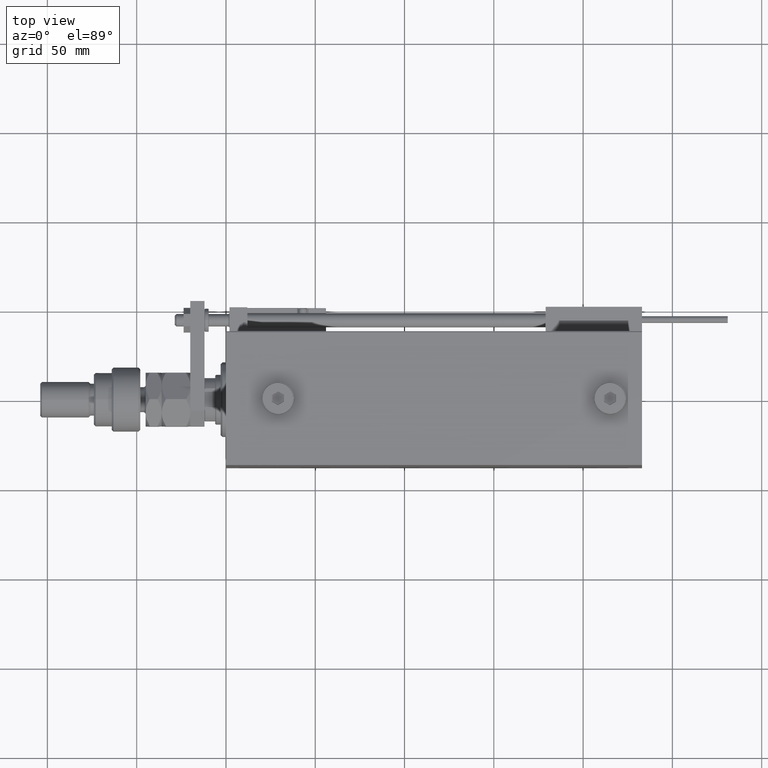
[diagram: clean part render]
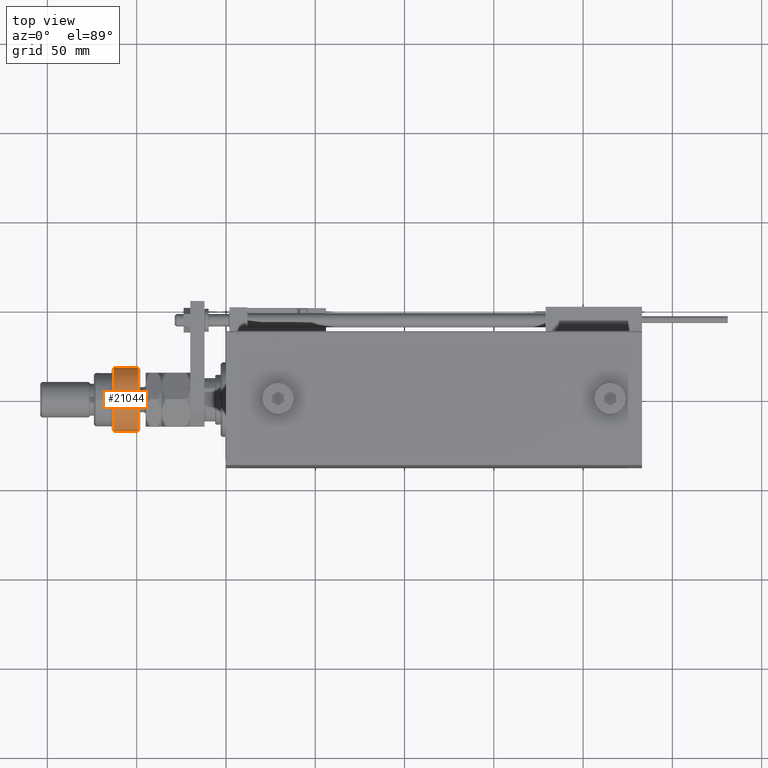
[diagram: same view with one face highlighted and labeled with its STEP entity id]
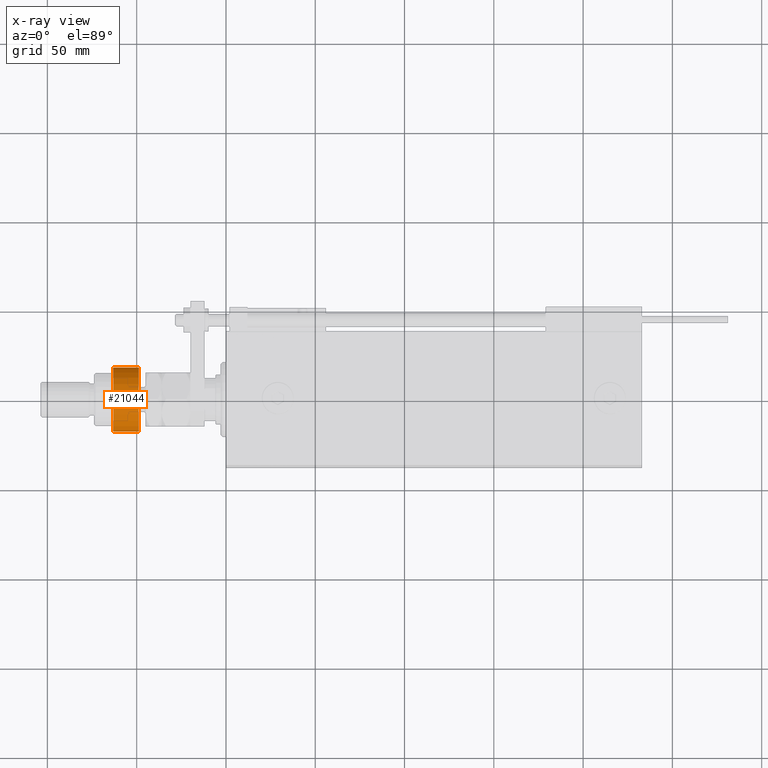
[diagram: x-ray of the same camera — body ghosted, the highlighted face saturated]
A machine part, top view. The second image highlights one B-rep face of the part: STEP entity #21044.
The next image is the same camera in x-ray: the body ghosted, the highlighted face saturated — about 0% of this face is hidden behind the body in this view.
In plain terms, the highlighted cylindrical surface (edge-blend (fillet) strip) has radius 18 mm, axis along (1, -0, -0).
Its self-contained STEP definition (entity closure, byte-faithful):
#84 = VECTOR ( 'NONE', #22213, 1000.000000000000000 ) ;
#245 = EDGE_LOOP ( 'NONE', ( #34460, #7274, #38381, #25945, #31530 ) ) ;
#360 = EDGE_CURVE ( 'NONE', #39031, #19620, #8173, .T. ) ;
#1144 = CARTESIAN_POINT ( 'NONE',  ( -16.36306817195357155, 7.500000000000000000, 14.99999999999999645 ) ) ;
#4590 = VERTEX_POINT ( 'NONE', #21759 ) ;
#5153 = EDGE_CURVE ( 'NONE', #6929, #4590, #47008, .T. ) ;
#6929 = VERTEX_POINT ( 'NONE', #25721 ) ;
#7274 = ORIENTED_EDGE ( 'NONE', *, *, #360, .T. ) ;
#8173 = CIRCLE ( 'NONE', #38964, 18.00000000000000000 ) ;
#8681 = CARTESIAN_POINT ( 'NONE',  ( 0.000000000000000000, 0.000000000000000000, 1.000000000000011324 ) ) ;
#8819 = AXIS2_PLACEMENT_3D ( 'NONE', #52184, #44197, #27119 ) ;
#9166 = DIRECTION ( 'NONE',  ( -0.000000000000000000, -0.000000000000000000, -1.000000000000000000 ) ) ;
#10027 = FACE_OUTER_BOUND ( 'NONE', #245, .T. ) ;
#10082 = AXIS2_PLACEMENT_3D ( 'NONE', #8681, #16697, #51102 ) ;
#10586 = CYLINDRICAL_SURFACE ( 'NONE', #8819, 18.00000000000000000 ) ;
#11286 = DIRECTION ( 'NONE',  ( 1.000000000000000000, 0.000000000000000000, 0.000000000000000000 ) ) ;
#14212 = CARTESIAN_POINT ( 'NONE',  ( -16.36306817195357155, -7.500000000000000000, 17.50000000000000000 ) ) ;
#16697 = DIRECTION ( 'NONE',  ( -0.000000000000000000, -0.000000000000000000, 1.000000000000000000 ) ) ;
#19620 = VERTEX_POINT ( 'NONE', #25387 ) ;
#21044 = ADVANCED_FACE ( 'NONE', ( #10027 ), #10586, .T. ) ;
#21759 = CARTESIAN_POINT ( 'NONE',  ( 18.00000000000000000, 0.000000000000000000, 1.000000000000011324 ) ) ;
#22213 = DIRECTION ( 'NONE',  ( -0.000000000000000000, -0.000000000000000000, -1.000000000000000000 ) ) ;
#23068 = DIRECTION ( 'NONE',  ( -0.000000000000000000, -0.000000000000000000, 1.000000000000000000 ) ) ;
#25387 = CARTESIAN_POINT ( 'NONE',  ( -16.36306817195357155, -7.500000000000000000, 14.99999999999999645 ) ) ;
#25721 = CARTESIAN_POINT ( 'NONE',  ( -16.36306817195357155, -7.500000000000000000, 1.000000000000011324 ) ) ;
#25945 = ORIENTED_EDGE ( 'NONE', *, *, #5153, .T. ) ;
#27119 = DIRECTION ( 'NONE',  ( -1.000000000000000000, 0.000000000000000000, 0.000000000000000000 ) ) ;
#28862 = AXIS2_PLACEMENT_3D ( 'NONE', #44557, #23068, #31339 ) ;
#31339 = DIRECTION ( 'NONE',  ( 1.000000000000000000, 0.000000000000000000, 0.000000000000000000 ) ) ;
#31530 = ORIENTED_EDGE ( 'NONE', *, *, #42511, .T. ) ;
#31574 = EDGE_CURVE ( 'NONE', #39031, #43949, #38653, .T. ) ;
#32776 = DIRECTION ( 'NONE',  ( 0.000000000000000000, 0.000000000000000000, -1.000000000000000000 ) ) ;
#34460 = ORIENTED_EDGE ( 'NONE', *, *, #31574, .F. ) ;
#35152 = LINE ( 'NONE', #14212, #84 ) ;
#38381 = ORIENTED_EDGE ( 'NONE', *, *, #54205, .T. ) ;
#38653 = LINE ( 'NONE', #47446, #44389 ) ;
#38964 = AXIS2_PLACEMENT_3D ( 'NONE', #45442, #32776, #11286 ) ;
#39031 = VERTEX_POINT ( 'NONE', #1144 ) ;
#42511 = EDGE_CURVE ( 'NONE', #4590, #43949, #44697, .T. ) ;
#43949 = VERTEX_POINT ( 'NONE', #48621 ) ;
#44197 = DIRECTION ( 'NONE',  ( -0.000000000000000000, -0.000000000000000000, -1.000000000000000000 ) ) ;
#44389 = VECTOR ( 'NONE', #9166, 1000.000000000000000 ) ;
#44557 = CARTESIAN_POINT ( 'NONE',  ( 0.000000000000000000, 0.000000000000000000, 1.000000000000011324 ) ) ;
#44697 = CIRCLE ( 'NONE', #28862, 18.00000000000000000 ) ;
#45442 = CARTESIAN_POINT ( 'NONE',  ( 0.000000000000000000, 0.000000000000000000, 14.99999999999999645 ) ) ;
#47008 = CIRCLE ( 'NONE', #10082, 18.00000000000000000 ) ;
#47446 = CARTESIAN_POINT ( 'NONE',  ( -16.36306817195357155, 7.500000000000000000, 17.50000000000000000 ) ) ;
#48621 = CARTESIAN_POINT ( 'NONE',  ( -16.36306817195357155, 7.500000000000000000, 1.000000000000011324 ) ) ;
#51102 = DIRECTION ( 'NONE',  ( 1.000000000000000000, 0.000000000000000000, 0.000000000000000000 ) ) ;
#52184 = CARTESIAN_POINT ( 'NONE',  ( 0.000000000000000000, 0.000000000000000000, 16.00000000000000000 ) ) ;
#54205 = EDGE_CURVE ( 'NONE', #19620, #6929, #35152, .T. ) ;